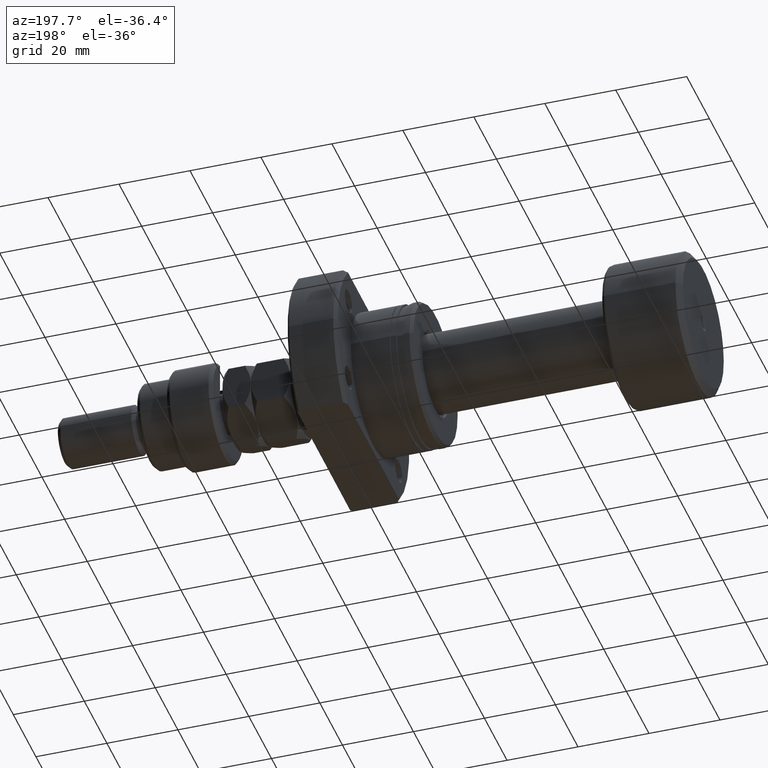
[diagram: clean part render]
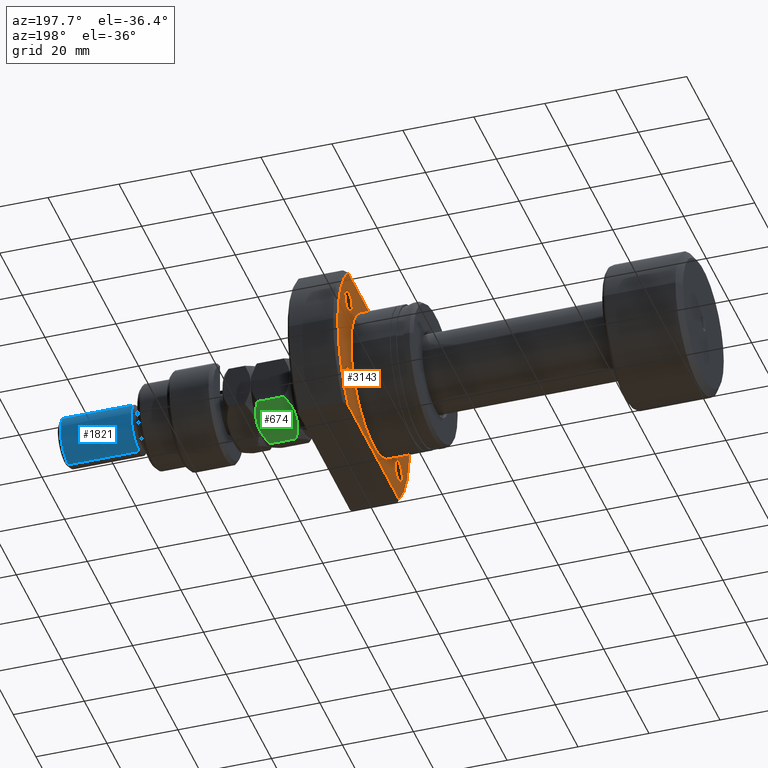
[diagram: same view with three faces highlighted in distinct colors, each labeled with its STEP entity id]
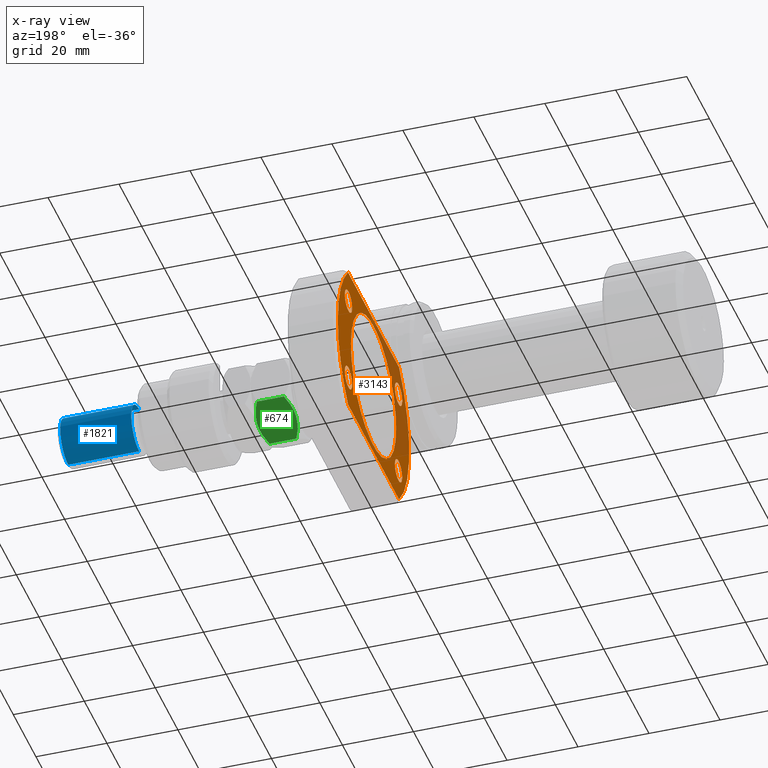
[diagram: x-ray of the same camera — body ghosted, the three highlighted faces saturated]
A machine part, auxiliary view with three faces highlighted in distinct colors.
The next image is the same camera in x-ray (body ghosted, the three faces saturated) — at least one of them is partly hidden behind the body in this view.
Their STEP definitions:

[orange] entity #3143 — the highlighted planar face has unit normal (1, 0, 0).
#35 = AXIS2_PLACEMENT_3D ( 'NONE', #1006, #4314, #1987 ) ;
#99 = ORIENTED_EDGE ( 'NONE', *, *, #2542, .T. ) ;
#106 = VERTEX_POINT ( 'NONE', #3009 ) ;
#167 = FACE_BOUND ( 'NONE', #1019, .T. ) ;
#254 = VERTEX_POINT ( 'NONE', #896 ) ;
#261 = ORIENTED_EDGE ( 'NONE', *, *, #3239, .T. ) ;
#283 = ORIENTED_EDGE ( 'NONE', *, *, #5649, .F. ) ;
#316 = CARTESIAN_POINT ( 'NONE',  ( 17.50000000000000355, 22.54440063519089676, 22.00000000000000355 ) ) ;
#439 = EDGE_LOOP ( 'NONE', ( #3137, #283, #5074, #5124, #3558 ) ) ;
#538 = CIRCLE ( 'NONE', #3368, 3.249999999999999556 ) ;
#543 = CIRCLE ( 'NONE', #4944, 31.49999999999993250 ) ;
#603 = CARTESIAN_POINT ( 'NONE',  ( 17.50000000000000000, -22.10000000000050946, -12.75000000000000178 ) ) ;
#645 = CARTESIAN_POINT ( 'NONE',  ( 17.50000000000000000, 4.762515330017480942E-16, 0.000000000000000000 ) ) ;
#725 = AXIS2_PLACEMENT_3D ( 'NONE', #2738, #3647, #1825 ) ;
#741 = CIRCLE ( 'NONE', #5808, 3.249999999999999556 ) ;
#753 = DIRECTION ( 'NONE',  ( 2.721437331438560389E-17, -1.000000000000000000, 0.000000000000000000 ) ) ;
#767 = VERTEX_POINT ( 'NONE', #2437 ) ;
#775 = CARTESIAN_POINT ( 'NONE',  ( 17.50000000000000000, 22.09999999999949338, -12.75000000000000178 ) ) ;
#826 = AXIS2_PLACEMENT_3D ( 'NONE', #775, #3159, #2643 ) ;
#831 = DIRECTION ( 'NONE',  ( 0.000000000000000000, 1.000000000000000000, 0.000000000000000000 ) ) ;
#891 = EDGE_CURVE ( 'NONE', #1755, #2240, #4984, .T. ) ;
#896 = CARTESIAN_POINT ( 'NONE',  ( 17.50000000000000000, -25.35000000000050591, -12.75000000000000178 ) ) ;
#916 = VERTEX_POINT ( 'NONE', #4887 ) ;
#927 = CIRCLE ( 'NONE', #35, 3.249999999999999556 ) ;
#953 = ORIENTED_EDGE ( 'NONE', *, *, #4806, .T. ) ;
#991 = ORIENTED_EDGE ( 'NONE', *, *, #3904, .T. ) ;
#1006 = CARTESIAN_POINT ( 'NONE',  ( 17.50000000000000000, 22.09999999999949338, 12.74999999999999822 ) ) ;
#1019 = EDGE_LOOP ( 'NONE', ( #953, #2650 ) ) ;
#1070 = EDGE_LOOP ( 'NONE', ( #261, #4375 ) ) ;
#1086 = ORIENTED_EDGE ( 'NONE', *, *, #3518, .T. ) ;
#1247 = EDGE_CURVE ( 'NONE', #2080, #5929, #4830, .T. ) ;
#1248 = EDGE_CURVE ( 'NONE', #1761, #1392, #927, .T. ) ;
#1308 = EDGE_LOOP ( 'NONE', ( #1592, #99 ) ) ;
#1343 = CARTESIAN_POINT ( 'NONE',  ( 17.50000000000000000, 19.99999999999999645, 0.000000000000000000 ) ) ;
#1392 = VERTEX_POINT ( 'NONE', #2997 ) ;
#1437 = AXIS2_PLACEMENT_3D ( 'NONE', #4005, #5889, #4496 ) ;
#1507 = CARTESIAN_POINT ( 'NONE',  ( 17.50000000000000000, 22.09999999999949338, 12.74999999999999822 ) ) ;
#1580 = VERTEX_POINT ( 'NONE', #1844 ) ;
#1592 = ORIENTED_EDGE ( 'NONE', *, *, #4294, .T. ) ;
#1685 = DIRECTION ( 'NONE',  ( 0.000000000000000000, 1.000000000000000000, 0.000000000000000000 ) ) ;
#1755 = VERTEX_POINT ( 'NONE', #2412 ) ;
#1761 = VERTEX_POINT ( 'NONE', #4822 ) ;
#1825 = DIRECTION ( 'NONE',  ( 0.000000000000000000, 1.000000000000000000, 0.000000000000000000 ) ) ;
#1844 = CARTESIAN_POINT ( 'NONE',  ( 17.50000000000000000, 18.84999999999949694, -12.75000000000000178 ) ) ;
#1897 = VERTEX_POINT ( 'NONE', #5305 ) ;
#1916 = CIRCLE ( 'NONE', #3370, 3.249999999999999556 ) ;
#1976 = CARTESIAN_POINT ( 'NONE',  ( 17.50000000000000355, 31.49999999999993250, 0.000000000000000000 ) ) ;
#1987 = DIRECTION ( 'NONE',  ( 0.000000000000000000, 1.000000000000000000, 0.000000000000000000 ) ) ;
#2011 = AXIS2_PLACEMENT_3D ( 'NONE', #645, #2085, #5805 ) ;
#2080 = VERTEX_POINT ( 'NONE', #316 ) ;
#2085 = DIRECTION ( 'NONE',  ( 1.000000000000000000, 2.721437331438560389E-17, -0.000000000000000000 ) ) ;
#2103 = DIRECTION ( 'NONE',  ( -2.721437331438560389E-17, 1.000000000000000000, 0.000000000000000000 ) ) ;
#2105 = AXIS2_PLACEMENT_3D ( 'NONE', #4458, #2653, #4860 ) ;
#2205 = VECTOR ( 'NONE', #4781, 1000.000000000000000 ) ;
#2240 = VERTEX_POINT ( 'NONE', #5691 ) ;
#2251 = EDGE_LOOP ( 'NONE', ( #5365, #991 ) ) ;
#2261 = CARTESIAN_POINT ( 'NONE',  ( 17.50000000000000355, 4.762515330017481928E-16, 0.000000000000000000 ) ) ;
#2317 = AXIS2_PLACEMENT_3D ( 'NONE', #2261, #4130, #1685 ) ;
#2412 = CARTESIAN_POINT ( 'NONE',  ( 17.50000000000000355, 22.54440063519089676, -22.00000000000000355 ) ) ;
#2437 = CARTESIAN_POINT ( 'NONE',  ( 17.50000000000000000, 25.34999999999949338, -12.75000000000000178 ) ) ;
#2465 = EDGE_CURVE ( 'NONE', #1755, #5364, #5034, .T. ) ;
#2469 = DIRECTION ( 'NONE',  ( 0.000000000000000000, 1.000000000000000000, 0.000000000000000000 ) ) ;
#2542 = EDGE_CURVE ( 'NONE', #1580, #767, #5131, .T. ) ;
#2643 = DIRECTION ( 'NONE',  ( 0.000000000000000000, 1.000000000000000000, 0.000000000000000000 ) ) ;
#2650 = ORIENTED_EDGE ( 'NONE', *, *, #4129, .T. ) ;
#2653 = DIRECTION ( 'NONE',  ( 1.000000000000000000, 2.721437331438560389E-17, -0.000000000000000000 ) ) ;
#2738 = CARTESIAN_POINT ( 'NONE',  ( 17.50000000000000355, 4.762515330017481928E-16, 0.000000000000000000 ) ) ;
#2804 = DIRECTION ( 'NONE',  ( 1.000000000000000000, 2.721437331438560389E-17, -0.000000000000000000 ) ) ;
#2887 = DIRECTION ( 'NONE',  ( 1.000000000000000000, 2.721437331438560389E-17, -0.000000000000000000 ) ) ;
#2932 = FACE_BOUND ( 'NONE', #2251, .T. ) ;
#2997 = CARTESIAN_POINT ( 'NONE',  ( 17.50000000000000000, 18.84999999999949694, 12.74999999999999822 ) ) ;
#3009 = CARTESIAN_POINT ( 'NONE',  ( 17.50000000000000000, -19.99999999999999645, 2.449293598294706119E-15 ) ) ;
#3137 = ORIENTED_EDGE ( 'NONE', *, *, #1247, .F. ) ;
#3143 = ADVANCED_FACE ( 'NONE', ( #2932, #3882, #5735, #4367, #167, #3322 ), #3908, .F. ) ;
#3159 = DIRECTION ( 'NONE',  ( 1.000000000000000000, 2.721437331438560389E-17, -0.000000000000000000 ) ) ;
#3239 = EDGE_CURVE ( 'NONE', #916, #254, #3454, .T. ) ;
#3280 = DIRECTION ( 'NONE',  ( 0.000000000000000000, 1.000000000000000000, 0.000000000000000000 ) ) ;
#3322 = FACE_OUTER_BOUND ( 'NONE', #439, .T. ) ;
#3368 = AXIS2_PLACEMENT_3D ( 'NONE', #5670, #4766, #3836 ) ;
#3369 = VERTEX_POINT ( 'NONE', #1343 ) ;
#3370 = AXIS2_PLACEMENT_3D ( 'NONE', #1507, #2887, #3280 ) ;
#3403 = CARTESIAN_POINT ( 'NONE',  ( 17.50000000000000000, -25.35000000000050591, 12.74999999999999822 ) ) ;
#3454 = CIRCLE ( 'NONE', #2105, 3.249999999999999556 ) ;
#3512 = VERTEX_POINT ( 'NONE', #3403 ) ;
#3518 = EDGE_CURVE ( 'NONE', #1897, #3512, #538, .T. ) ;
#3524 = DIRECTION ( 'NONE',  ( 0.000000000000000000, 1.000000000000000000, 0.000000000000000000 ) ) ;
#3526 = ORIENTED_EDGE ( 'NONE', *, *, #4021, .T. ) ;
#3558 = ORIENTED_EDGE ( 'NONE', *, *, #4688, .F. ) ;
#3574 = CIRCLE ( 'NONE', #5146, 3.249999999999999556 ) ;
#3614 = DIRECTION ( 'NONE',  ( 1.000000000000000000, 2.721437331438560389E-17, -0.000000000000000000 ) ) ;
#3647 = DIRECTION ( 'NONE',  ( 1.000000000000000000, 2.721437331438560389E-17, -0.000000000000000000 ) ) ;
#3836 = DIRECTION ( 'NONE',  ( 0.000000000000000000, 1.000000000000000000, 0.000000000000000000 ) ) ;
#3863 = CARTESIAN_POINT ( 'NONE',  ( 17.50000000000000000, -22.10000000000050946, 12.74999999999999822 ) ) ;
#3882 = FACE_BOUND ( 'NONE', #4626, .T. ) ;
#3904 = EDGE_CURVE ( 'NONE', #1392, #1761, #1916, .T. ) ;
#3908 = PLANE ( 'NONE',  #5137 ) ;
#3930 = DIRECTION ( 'NONE',  ( 1.000000000000000000, 2.721437331438560389E-17, -0.000000000000000000 ) ) ;
#4005 = CARTESIAN_POINT ( 'NONE',  ( 17.50000000000000000, 4.762515330017480942E-16, 0.000000000000000000 ) ) ;
#4021 = EDGE_CURVE ( 'NONE', #3512, #1897, #5529, .T. ) ;
#4129 = EDGE_CURVE ( 'NONE', #106, #3369, #5433, .T. ) ;
#4130 = DIRECTION ( 'NONE',  ( 1.000000000000000000, 2.721437331438560389E-17, -0.000000000000000000 ) ) ;
#4169 = AXIS2_PLACEMENT_3D ( 'NONE', #3863, #2804, #5687 ) ;
#4294 = EDGE_CURVE ( 'NONE', #767, #1580, #741, .T. ) ;
#4314 = DIRECTION ( 'NONE',  ( 1.000000000000000000, 2.721437331438560389E-17, -0.000000000000000000 ) ) ;
#4367 = FACE_BOUND ( 'NONE', #1308, .T. ) ;
#4375 = ORIENTED_EDGE ( 'NONE', *, *, #4513, .T. ) ;
#4458 = CARTESIAN_POINT ( 'NONE',  ( 17.50000000000000000, -22.10000000000050946, -12.75000000000000178 ) ) ;
#4496 = DIRECTION ( 'NONE',  ( 0.000000000000000000, 1.000000000000000000, 0.000000000000000000 ) ) ;
#4513 = EDGE_CURVE ( 'NONE', #254, #916, #3574, .T. ) ;
#4540 = CARTESIAN_POINT ( 'NONE',  ( 17.50000000000000355, 4.762515330017481928E-16, 0.000000000000000000 ) ) ;
#4626 = EDGE_LOOP ( 'NONE', ( #1086, #3526 ) ) ;
#4664 = CIRCLE ( 'NONE', #1437, 19.99999999999999645 ) ;
#4688 = EDGE_CURVE ( 'NONE', #5929, #2240, #5539, .T. ) ;
#4766 = DIRECTION ( 'NONE',  ( 1.000000000000000000, 2.721437331438560389E-17, -0.000000000000000000 ) ) ;
#4781 = DIRECTION ( 'NONE',  ( 2.721437331438560389E-17, -1.000000000000000000, 0.000000000000000000 ) ) ;
#4806 = EDGE_CURVE ( 'NONE', #3369, #106, #4664, .T. ) ;
#4822 = CARTESIAN_POINT ( 'NONE',  ( 17.50000000000000000, 25.34999999999949338, 12.74999999999999822 ) ) ;
#4830 = LINE ( 'NONE', #5201, #2205 ) ;
#4833 = DIRECTION ( 'NONE',  ( 1.000000000000000000, 2.721437331438560389E-17, -0.000000000000000000 ) ) ;
#4860 = DIRECTION ( 'NONE',  ( 0.000000000000000000, 1.000000000000000000, 0.000000000000000000 ) ) ;
#4887 = CARTESIAN_POINT ( 'NONE',  ( 17.50000000000000000, -18.85000000000050946, -12.75000000000000178 ) ) ;
#4944 = AXIS2_PLACEMENT_3D ( 'NONE', #4540, #5039, #3524 ) ;
#4984 = LINE ( 'NONE', #5819, #5993 ) ;
#5034 = CIRCLE ( 'NONE', #725, 31.49999999999993250 ) ;
#5039 = DIRECTION ( 'NONE',  ( 1.000000000000000000, 2.721437331438560389E-17, -0.000000000000000000 ) ) ;
#5074 = ORIENTED_EDGE ( 'NONE', *, *, #2465, .F. ) ;
#5124 = ORIENTED_EDGE ( 'NONE', *, *, #891, .T. ) ;
#5131 = CIRCLE ( 'NONE', #826, 3.249999999999999556 ) ;
#5137 = AXIS2_PLACEMENT_3D ( 'NONE', #5197, #3930, #2103 ) ;
#5146 = AXIS2_PLACEMENT_3D ( 'NONE', #603, #4833, #2469 ) ;
#5197 = CARTESIAN_POINT ( 'NONE',  ( 17.50000000000000000, -19.99999999999999645, 0.000000000000000000 ) ) ;
#5201 = CARTESIAN_POINT ( 'NONE',  ( 17.50000000000000000, -19.99999999999999645, 22.00000000000000355 ) ) ;
#5305 = CARTESIAN_POINT ( 'NONE',  ( 17.50000000000000000, -18.85000000000050946, 12.74999999999999822 ) ) ;
#5364 = VERTEX_POINT ( 'NONE', #1976 ) ;
#5365 = ORIENTED_EDGE ( 'NONE', *, *, #1248, .T. ) ;
#5375 = CARTESIAN_POINT ( 'NONE',  ( 17.50000000000001776, -22.54440063519093940, 22.00000000000000355 ) ) ;
#5433 = CIRCLE ( 'NONE', #2011, 19.99999999999999645 ) ;
#5529 = CIRCLE ( 'NONE', #4169, 3.249999999999999556 ) ;
#5539 = CIRCLE ( 'NONE', #2317, 31.49999999999993250 ) ;
#5649 = EDGE_CURVE ( 'NONE', #5364, #2080, #543, .T. ) ;
#5670 = CARTESIAN_POINT ( 'NONE',  ( 17.50000000000000000, -22.10000000000050946, 12.74999999999999822 ) ) ;
#5687 = DIRECTION ( 'NONE',  ( 0.000000000000000000, 1.000000000000000000, 0.000000000000000000 ) ) ;
#5691 = CARTESIAN_POINT ( 'NONE',  ( 17.50000000000001776, -22.54440063519093940, -22.00000000000000355 ) ) ;
#5735 = FACE_BOUND ( 'NONE', #1070, .T. ) ;
#5805 = DIRECTION ( 'NONE',  ( 0.000000000000000000, 1.000000000000000000, 0.000000000000000000 ) ) ;
#5808 = AXIS2_PLACEMENT_3D ( 'NONE', #5898, #3614, #831 ) ;
#5819 = CARTESIAN_POINT ( 'NONE',  ( 17.50000000000000000, -19.99999999999999645, -22.00000000000000355 ) ) ;
#5889 = DIRECTION ( 'NONE',  ( 1.000000000000000000, 2.721437331438560389E-17, -0.000000000000000000 ) ) ;
#5898 = CARTESIAN_POINT ( 'NONE',  ( 17.50000000000000000, 22.09999999999949338, -12.75000000000000178 ) ) ;
#5929 = VERTEX_POINT ( 'NONE', #5375 ) ;
#5993 = VECTOR ( 'NONE', #753, 1000.000000000000000 ) ;

[blue] entity #1821 — the highlighted cylindrical surface (edge-blend (fillet) strip) has radius 7 mm, axis along (-1, -0, 0).
#31 = AXIS2_PLACEMENT_3D ( 'NONE', #187, #3464, #5335 ) ;
#51 = ORIENTED_EDGE ( 'NONE', *, *, #1023, .T. ) ;
#108 = VERTEX_POINT ( 'NONE', #648 ) ;
#187 = CARTESIAN_POINT ( 'NONE',  ( 0.000000000000000000, 0.000000000000000000, 44.99999999999999289 ) ) ;
#210 = EDGE_CURVE ( 'NONE', #4949, #3997, #3841, .T. ) ;
#388 = ORIENTED_EDGE ( 'NONE', *, *, #3697, .F. ) ;
#600 = EDGE_LOOP ( 'NONE', ( #51, #3166, #4157, #388 ) ) ;
#648 = CARTESIAN_POINT ( 'NONE',  ( -7.000000000000000000, 0.000000000000000000, 44.99999999999999289 ) ) ;
#704 = DIRECTION ( 'NONE',  ( 1.000000000000000000, 0.000000000000000000, 0.000000000000000000 ) ) ;
#755 = CYLINDRICAL_SURFACE ( 'NONE', #1705, 7.000000000000000000 ) ;
#850 = CARTESIAN_POINT ( 'NONE',  ( 7.000000000000000000, 8.572527594031473190E-16, 44.99999999999999289 ) ) ;
#914 = AXIS2_PLACEMENT_3D ( 'NONE', #5326, #5385, #704 ) ;
#964 = CARTESIAN_POINT ( 'NONE',  ( -7.000000000000000000, 0.000000000000000000, 24.99999999999998934 ) ) ;
#1023 = EDGE_CURVE ( 'NONE', #108, #3337, #3759, .T. ) ;
#1108 = LINE ( 'NONE', #2979, #2889 ) ;
#1403 = CARTESIAN_POINT ( 'NONE',  ( 7.000000000000000000, 8.572527594031473190E-16, 24.99999999999998934 ) ) ;
#1552 = CARTESIAN_POINT ( 'NONE',  ( 7.000000000000000000, 8.572527594031473190E-16, 46.00000000000000000 ) ) ;
#1705 = AXIS2_PLACEMENT_3D ( 'NONE', #2494, #5437, #3046 ) ;
#1821 = ADVANCED_FACE ( 'NONE', ( #3074 ), #755, .T. ) ;
#1823 = VECTOR ( 'NONE', #2926, 1000.000000000000000 ) ;
#2494 = CARTESIAN_POINT ( 'NONE',  ( 0.000000000000000000, 0.000000000000000000, 46.00000000000000000 ) ) ;
#2889 = VECTOR ( 'NONE', #5359, 1000.000000000000000 ) ;
#2926 = DIRECTION ( 'NONE',  ( -0.000000000000000000, -0.000000000000000000, -1.000000000000000000 ) ) ;
#2979 = CARTESIAN_POINT ( 'NONE',  ( -7.000000000000000000, 0.000000000000000000, 46.00000000000000000 ) ) ;
#2980 = LINE ( 'NONE', #1552, #1823 ) ;
#3046 = DIRECTION ( 'NONE',  ( -1.000000000000000000, 0.000000000000000000, 0.000000000000000000 ) ) ;
#3074 = FACE_OUTER_BOUND ( 'NONE', #600, .T. ) ;
#3166 = ORIENTED_EDGE ( 'NONE', *, *, #5402, .T. ) ;
#3337 = VERTEX_POINT ( 'NONE', #850 ) ;
#3464 = DIRECTION ( 'NONE',  ( 0.000000000000000000, 0.000000000000000000, -1.000000000000000000 ) ) ;
#3697 = EDGE_CURVE ( 'NONE', #108, #3997, #1108, .T. ) ;
#3759 = CIRCLE ( 'NONE', #31, 7.000000000000000000 ) ;
#3841 = CIRCLE ( 'NONE', #914, 7.000000000000000000 ) ;
#3997 = VERTEX_POINT ( 'NONE', #964 ) ;
#4157 = ORIENTED_EDGE ( 'NONE', *, *, #210, .T. ) ;
#4949 = VERTEX_POINT ( 'NONE', #1403 ) ;
#5326 = CARTESIAN_POINT ( 'NONE',  ( 0.000000000000000000, 0.000000000000000000, 24.99999999999998934 ) ) ;
#5335 = DIRECTION ( 'NONE',  ( 1.000000000000000000, 0.000000000000000000, 0.000000000000000000 ) ) ;
#5359 = DIRECTION ( 'NONE',  ( -0.000000000000000000, -0.000000000000000000, -1.000000000000000000 ) ) ;
#5385 = DIRECTION ( 'NONE',  ( -0.000000000000000000, -0.000000000000000000, 1.000000000000000000 ) ) ;
#5402 = EDGE_CURVE ( 'NONE', #3337, #4949, #2980, .T. ) ;
#5437 = DIRECTION ( 'NONE',  ( -0.000000000000000000, -0.000000000000000000, -1.000000000000000000 ) ) ;

[green] entity #674 — the highlighted planar face has unit normal (0, -0.5, 0.866).
#110 = CARTESIAN_POINT ( 'NONE',  ( -4.327962126576701651E-16, 12.70170592217176342, 9.298294077828241910 ) ) ;
#232 = ORIENTED_EDGE ( 'NONE', *, *, #4476, .F. ) ;
#293 = EDGE_CURVE ( 'NONE', #691, #979, #1409, .T. ) ;
#349 = LINE ( 'NONE', #3203, #5126 ) ;
#366 = FACE_OUTER_BOUND ( 'NONE', #2816, .T. ) ;
#382 = DIRECTION ( 'NONE',  ( -0.000000000000000000, -0.000000000000000000, -1.000000000000000000 ) ) ;
#400 = CARTESIAN_POINT ( 'NONE',  ( 9.006588997586899406E-16, 12.70170592217176342, 1.701705922171758312 ) ) ;
#493 = CARTESIAN_POINT ( 'NONE',  ( 10.13851939750335696, 6.848229018838962290, 1.204329864418605567 ) ) ;
#539 = DIRECTION ( 'NONE',  ( -0.000000000000000000, -0.000000000000000000, -1.000000000000000000 ) ) ;
#674 = ADVANCED_FACE ( 'NONE', ( #366 ), #2241, .F. ) ;
#691 = VERTEX_POINT ( 'NONE', #4969 ) ;
#717 = B_SPLINE_CURVE_WITH_KNOTS ( 'NONE', 3,
 ( #4695, #4721, #4602, #5640, #493, #2274 ),
 .UNSPECIFIED., .F., .F.,
 ( 4, 2, 4 ),
 ( 0.006583488920348296025, 0.009852050593448707927, 0.01312061226654912330 ),
 .UNSPECIFIED. ) ;
#774 = CARTESIAN_POINT ( 'NONE',  ( 0.8624791307172143817, 12.20375336388174503, 1.203753363881742811 ) ) ;
#801 = CARTESIAN_POINT ( 'NONE',  ( 5.018290712253357100, 9.804394428580492260, -1.345088320239828938E-15 ) ) ;
#854 = ORIENTED_EDGE ( 'NONE', *, *, #293, .F. ) ;
#979 = VERTEX_POINT ( 'NONE', #4059 ) ;
#1032 = EDGE_CURVE ( 'NONE', #4911, #691, #349, .T. ) ;
#1036 = LINE ( 'NONE', #3818, #2591 ) ;
#1331 = CARTESIAN_POINT ( 'NONE',  ( 11.00000000000000000, 6.350852961085883486, 9.298294077828240134 ) ) ;
#1409 = B_SPLINE_CURVE_WITH_KNOTS ( 'NONE', 3,
 ( #400, #774, #1822, #5032, #3617, #2270, #801, #5935 ),
 .UNSPECIFIED., .F., .F.,
 ( 4, 2, 2, 4 ),
 ( 2.544311317623912303E-07, 0.003291871675740029504, 0.004937680298044162114, 0.006583488920348296025 ),
 .UNSPECIFIED. ) ;
#1565 = B_SPLINE_CURVE_WITH_KNOTS ( 'NONE', 3,
 ( #3328, #5629, #2793, #2446, #5202, #110 ),
 .UNSPECIFIED., .F., .F.,
 ( 4, 2, 4 ),
 ( 0.006583488920348298627, 0.009852050593448711396, 0.01312061226654912156 ),
 .UNSPECIFIED. ) ;
#1630 = CARTESIAN_POINT ( 'NONE',  ( 7.884967580346613936, 8.149317767107177701, 10.67178078790959717 ) ) ;
#1690 = CARTESIAN_POINT ( 'NONE',  ( 10.13752086928278295, 6.848805519375901874, 9.796246636118256745 ) ) ;
#1822 = CARTESIAN_POINT ( 'NONE',  ( 1.744478007639208350, 11.69453107486588195, 0.7806233875467714078 ) ) ;
#1994 = AXIS2_PLACEMENT_3D ( 'NONE', #3183, #3294, #2265 ) ;
#2149 = CARTESIAN_POINT ( 'NONE',  ( 5.499999999999998224, 9.526279441628819455, 11.00000000000000000 ) ) ;
#2241 = PLANE ( 'NONE',  #1994 ) ;
#2265 = DIRECTION ( 'NONE',  ( 0.8660254037844387076, -0.4999999999999998890, 0.000000000000000000 ) ) ;
#2270 = CARTESIAN_POINT ( 'NONE',  ( 4.529374112020105869, 10.08667055933643830, 0.04365929743512447087 ) ) ;
#2274 = CARTESIAN_POINT ( 'NONE',  ( 11.00000000000000000, 6.350852961085883486, 1.701705922171761198 ) ) ;
#2446 = CARTESIAN_POINT ( 'NONE',  ( 1.748214531935807559, 11.69237379155741152, 10.22231519547797518 ) ) ;
#2591 = VECTOR ( 'NONE', #539, 1000.000000000000000 ) ;
#2607 = CARTESIAN_POINT ( 'NONE',  ( 5.499999999999998224, 9.526279441628819455, 11.00000000000000000 ) ) ;
#2793 = CARTESIAN_POINT ( 'NONE',  ( 3.602926119288152318, 10.62155555733041901, 10.83109139163524581 ) ) ;
#2816 = EDGE_LOOP ( 'NONE', ( #854, #4344, #232, #3533, #4058, #4753 ) ) ;
#3069 = EDGE_CURVE ( 'NONE', #3072, #5200, #1036, .T. ) ;
#3072 = VERTEX_POINT ( 'NONE', #4799 ) ;
#3183 = CARTESIAN_POINT ( 'NONE',  ( 11.00000000000000000, 6.350852961085883486, 11.00000000000000000 ) ) ;
#3203 = CARTESIAN_POINT ( 'NONE',  ( 0.000000000000000000, 12.70170592217176342, 11.00000000000000000 ) ) ;
#3294 = DIRECTION ( 'NONE',  ( -0.4999999999999998890, -0.8660254037844387076, 0.000000000000000000 ) ) ;
#3328 = CARTESIAN_POINT ( 'NONE',  ( 5.499999999999998224, 9.526279441628819455, 11.00000000000000000 ) ) ;
#3349 = CARTESIAN_POINT ( 'NONE',  ( -4.327962126576701651E-16, 12.70170592217176342, 9.298294077828241910 ) ) ;
#3487 = CARTESIAN_POINT ( 'NONE',  ( 6.470625887979895019, 8.965888323921213043, 10.95634070256487824 ) ) ;
#3533 = ORIENTED_EDGE ( 'NONE', *, *, #5209, .F. ) ;
#3617 = CARTESIAN_POINT ( 'NONE',  ( 3.579894028994819788, 10.63485314086127431, 0.2081220748670722098 ) ) ;
#3818 = CARTESIAN_POINT ( 'NONE',  ( 11.00000000000000000, 6.350852961085883486, 11.00000000000000000 ) ) ;
#4058 = ORIENTED_EDGE ( 'NONE', *, *, #3069, .T. ) ;
#4059 = CARTESIAN_POINT ( 'NONE',  ( 5.499999999999999112, 9.526279441628826561, 0.000000000000000000 ) ) ;
#4344 = ORIENTED_EDGE ( 'NONE', *, *, #1032, .F. ) ;
#4476 = EDGE_CURVE ( 'NONE', #5891, #4911, #1565, .T. ) ;
#4602 = CARTESIAN_POINT ( 'NONE',  ( 7.397073880711847238, 8.431003325927232339, 0.1689086083647579339 ) ) ;
#4695 = CARTESIAN_POINT ( 'NONE',  ( 5.499999999999999112, 9.526279441628826561, 0.000000000000000000 ) ) ;
#4721 = CARTESIAN_POINT ( 'NONE',  ( 6.456670474420574735, 8.973945485696338764, -1.192622389734053694E-15 ) ) ;
#4753 = ORIENTED_EDGE ( 'NONE', *, *, #5794, .F. ) ;
#4799 = CARTESIAN_POINT ( 'NONE',  ( 11.00000000000000000, 6.350852961085883486, 9.298294077828240134 ) ) ;
#4911 = VERTEX_POINT ( 'NONE', #3349 ) ;
#4931 = CARTESIAN_POINT ( 'NONE',  ( 5.981709287746640236, 9.248164454677155533, 11.00000000000000000 ) ) ;
#4969 = CARTESIAN_POINT ( 'NONE',  ( 9.006588997586899406E-16, 12.70170592217176342, 1.701705922171758312 ) ) ;
#5032 = CARTESIAN_POINT ( 'NONE',  ( 3.115032419653387397, 10.90324111615047364, 0.3282192120904029453 ) ) ;
#5037 = CARTESIAN_POINT ( 'NONE',  ( 11.00000000000000000, 6.350852961085883486, 1.701705922171761198 ) ) ;
#5126 = VECTOR ( 'NONE', #382, 1000.000000000000000 ) ;
#5200 = VERTEX_POINT ( 'NONE', #5037 ) ;
#5202 = CARTESIAN_POINT ( 'NONE',  ( 0.8614806024966432663, 12.20432986441868728, 9.795670135581396210 ) ) ;
#5209 = EDGE_CURVE ( 'NONE', #3072, #5891, #5624, .T. ) ;
#5414 = CARTESIAN_POINT ( 'NONE',  ( 9.255521992360790762, 7.358027808391762292, 10.21937661245322460 ) ) ;
#5453 = CARTESIAN_POINT ( 'NONE',  ( 7.420105971005182433, 8.417705742396377033, 10.79187792513293154 ) ) ;
#5624 = B_SPLINE_CURVE_WITH_KNOTS ( 'NONE', 3,
 ( #1331, #1690, #5414, #1630, #5453, #3487, #4931, #2607 ),
 .UNSPECIFIED., .F., .F.,
 ( 4, 2, 2, 4 ),
 ( 2.544311317614349830E-07, 0.003291871675740032106, 0.004937680298044164716, 0.006583488920348298627 ),
 .UNSPECIFIED. ) ;
#5629 = CARTESIAN_POINT ( 'NONE',  ( 4.543329525579426154, 10.07861339756131080, 11.00000000000000000 ) ) ;
#5640 = CARTESIAN_POINT ( 'NONE',  ( 9.251785468064189999, 7.360185091700237159, 0.7776848045220270400 ) ) ;
#5794 = EDGE_CURVE ( 'NONE', #979, #5200, #717, .T. ) ;
#5891 = VERTEX_POINT ( 'NONE', #2149 ) ;
#5935 = CARTESIAN_POINT ( 'NONE',  ( 5.499999999999999112, 9.526279441628826561, 0.000000000000000000 ) ) ;